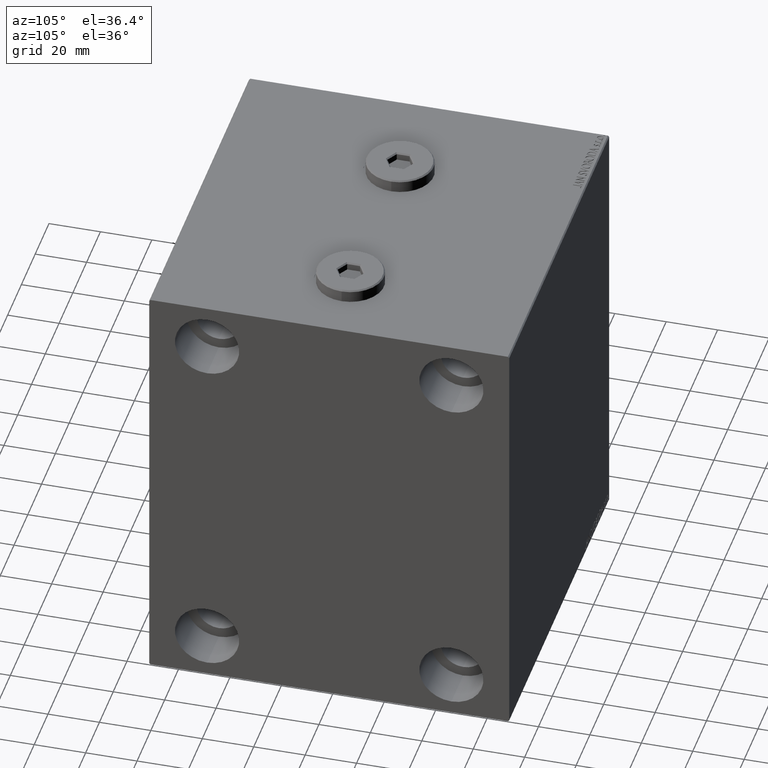
[diagram: clean part render]
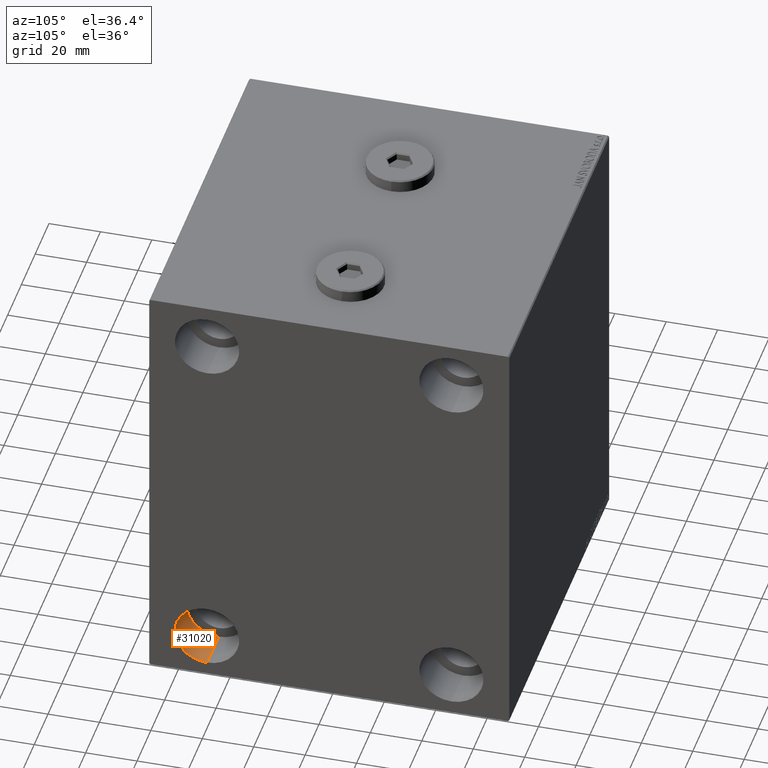
[diagram: same view with one face highlighted and labeled with its STEP entity id]
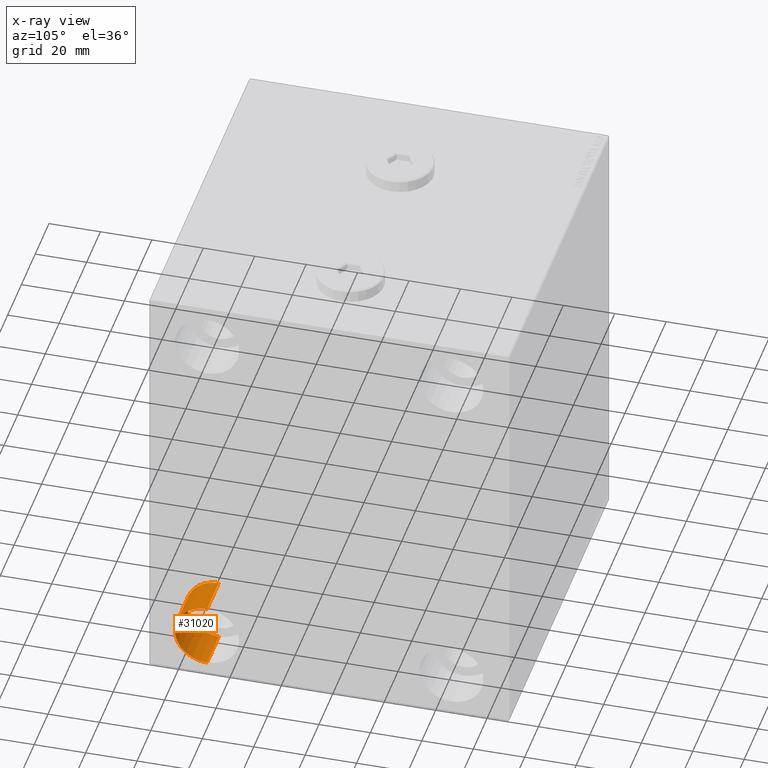
[diagram: x-ray of the same camera — body ghosted, the highlighted face saturated]
A machine part, auxiliary view. The second image highlights one B-rep face of the part: STEP entity #31020.
The next image is the same camera in x-ray: the body ghosted, the highlighted face saturated — about 0% of this face is hidden behind the body in this view.
In plain terms, the highlighted cylindrical surface (edge-blend (fillet) strip) has radius 12.5 mm, axis along (1, 0, 0).
Its self-contained STEP definition (entity closure, byte-faithful):
#128 = CARTESIAN_POINT ( 'NONE',  ( 128.0000000000000000, -47.49999999999999289, -55.00000000000000711 ) ) ;
#3455 = AXIS2_PLACEMENT_3D ( 'NONE', #6812, #44649, #13425 ) ;
#3601 = EDGE_CURVE ( 'NONE', #4708, #20131, #18382, .T. ) ;
#4708 = VERTEX_POINT ( 'NONE', #44503 ) ;
#6017 = CARTESIAN_POINT ( 'NONE',  ( 145.0000000000000000, -47.49999999999999289, -55.00000000000000711 ) ) ;
#6812 = CARTESIAN_POINT ( 'NONE',  ( 128.0000000000000000, -47.49999999999999289, -67.50000000000000000 ) ) ;
#7416 = EDGE_LOOP ( 'NONE', ( #36971, #11582, #39586, #13088 ) ) ;
#10463 = VERTEX_POINT ( 'NONE', #34467 ) ;
#11582 = ORIENTED_EDGE ( 'NONE', *, *, #35021, .T. ) ;
#13088 = ORIENTED_EDGE ( 'NONE', *, *, #13513, .F. ) ;
#13425 = DIRECTION ( 'NONE',  ( 0.000000000000000000, 0.000000000000000000, 1.000000000000000000 ) ) ;
#13513 = EDGE_CURVE ( 'NONE', #37323, #4708, #22347, .T. ) ;
#13682 = VECTOR ( 'NONE', #27697, 1000.000000000000000 ) ;
#16313 = DIRECTION ( 'NONE',  ( 0.000000000000000000, 0.000000000000000000, 1.000000000000000000 ) ) ;
#18340 = VECTOR ( 'NONE', #29652, 1000.000000000000000 ) ;
#18382 = CIRCLE ( 'NONE', #43865, 12.49999999999999645 ) ;
#19268 = DIRECTION ( 'NONE',  ( -1.000000000000000000, -0.000000000000000000, -0.000000000000000000 ) ) ;
#20131 = VERTEX_POINT ( 'NONE', #6017 ) ;
#22347 = LINE ( 'NONE', #30107, #18340 ) ;
#23099 = CIRCLE ( 'NONE', #3455, 12.49999999999999645 ) ;
#23152 = CARTESIAN_POINT ( 'NONE',  ( 145.0000000000000000, -47.49999999999999289, -67.50000000000000000 ) ) ;
#24683 = CARTESIAN_POINT ( 'NONE',  ( 128.0000000000000000, -47.49999999999999289, -67.50000000000000000 ) ) ;
#27697 = DIRECTION ( 'NONE',  ( 1.000000000000000000, -0.000000000000000000, -0.000000000000000000 ) ) ;
#28108 = CYLINDRICAL_SURFACE ( 'NONE', #42717, 12.49999999999999645 ) ;
#29652 = DIRECTION ( 'NONE',  ( 1.000000000000000000, -0.000000000000000000, -0.000000000000000000 ) ) ;
#30107 = CARTESIAN_POINT ( 'NONE',  ( 128.0000000000000000, -47.49999999999999289, -80.00000000000000000 ) ) ;
#31020 = ADVANCED_FACE ( 'NONE', ( #34269 ), #28108, .F. ) ;
#32970 = EDGE_CURVE ( 'NONE', #37323, #10463, #23099, .T. ) ;
#34269 = FACE_OUTER_BOUND ( 'NONE', #7416, .T. ) ;
#34467 = CARTESIAN_POINT ( 'NONE',  ( 128.0000000000000000, -47.49999999999999289, -55.00000000000000711 ) ) ;
#35021 = EDGE_CURVE ( 'NONE', #10463, #20131, #41588, .T. ) ;
#36971 = ORIENTED_EDGE ( 'NONE', *, *, #32970, .T. ) ;
#37323 = VERTEX_POINT ( 'NONE', #43683 ) ;
#38371 = DIRECTION ( 'NONE',  ( 1.000000000000000000, -0.000000000000000000, -0.000000000000000000 ) ) ;
#38591 = DIRECTION ( 'NONE',  ( 0.000000000000000000, 0.000000000000000000, -1.000000000000000000 ) ) ;
#39586 = ORIENTED_EDGE ( 'NONE', *, *, #3601, .F. ) ;
#41588 = LINE ( 'NONE', #128, #13682 ) ;
#42717 = AXIS2_PLACEMENT_3D ( 'NONE', #24683, #38371, #38591 ) ;
#43683 = CARTESIAN_POINT ( 'NONE',  ( 128.0000000000000000, -47.49999999999999289, -80.00000000000000000 ) ) ;
#43865 = AXIS2_PLACEMENT_3D ( 'NONE', #23152, #19268, #16313 ) ;
#44503 = CARTESIAN_POINT ( 'NONE',  ( 145.0000000000000000, -47.49999999999999289, -80.00000000000000000 ) ) ;
#44649 = DIRECTION ( 'NONE',  ( -1.000000000000000000, -0.000000000000000000, -0.000000000000000000 ) ) ;